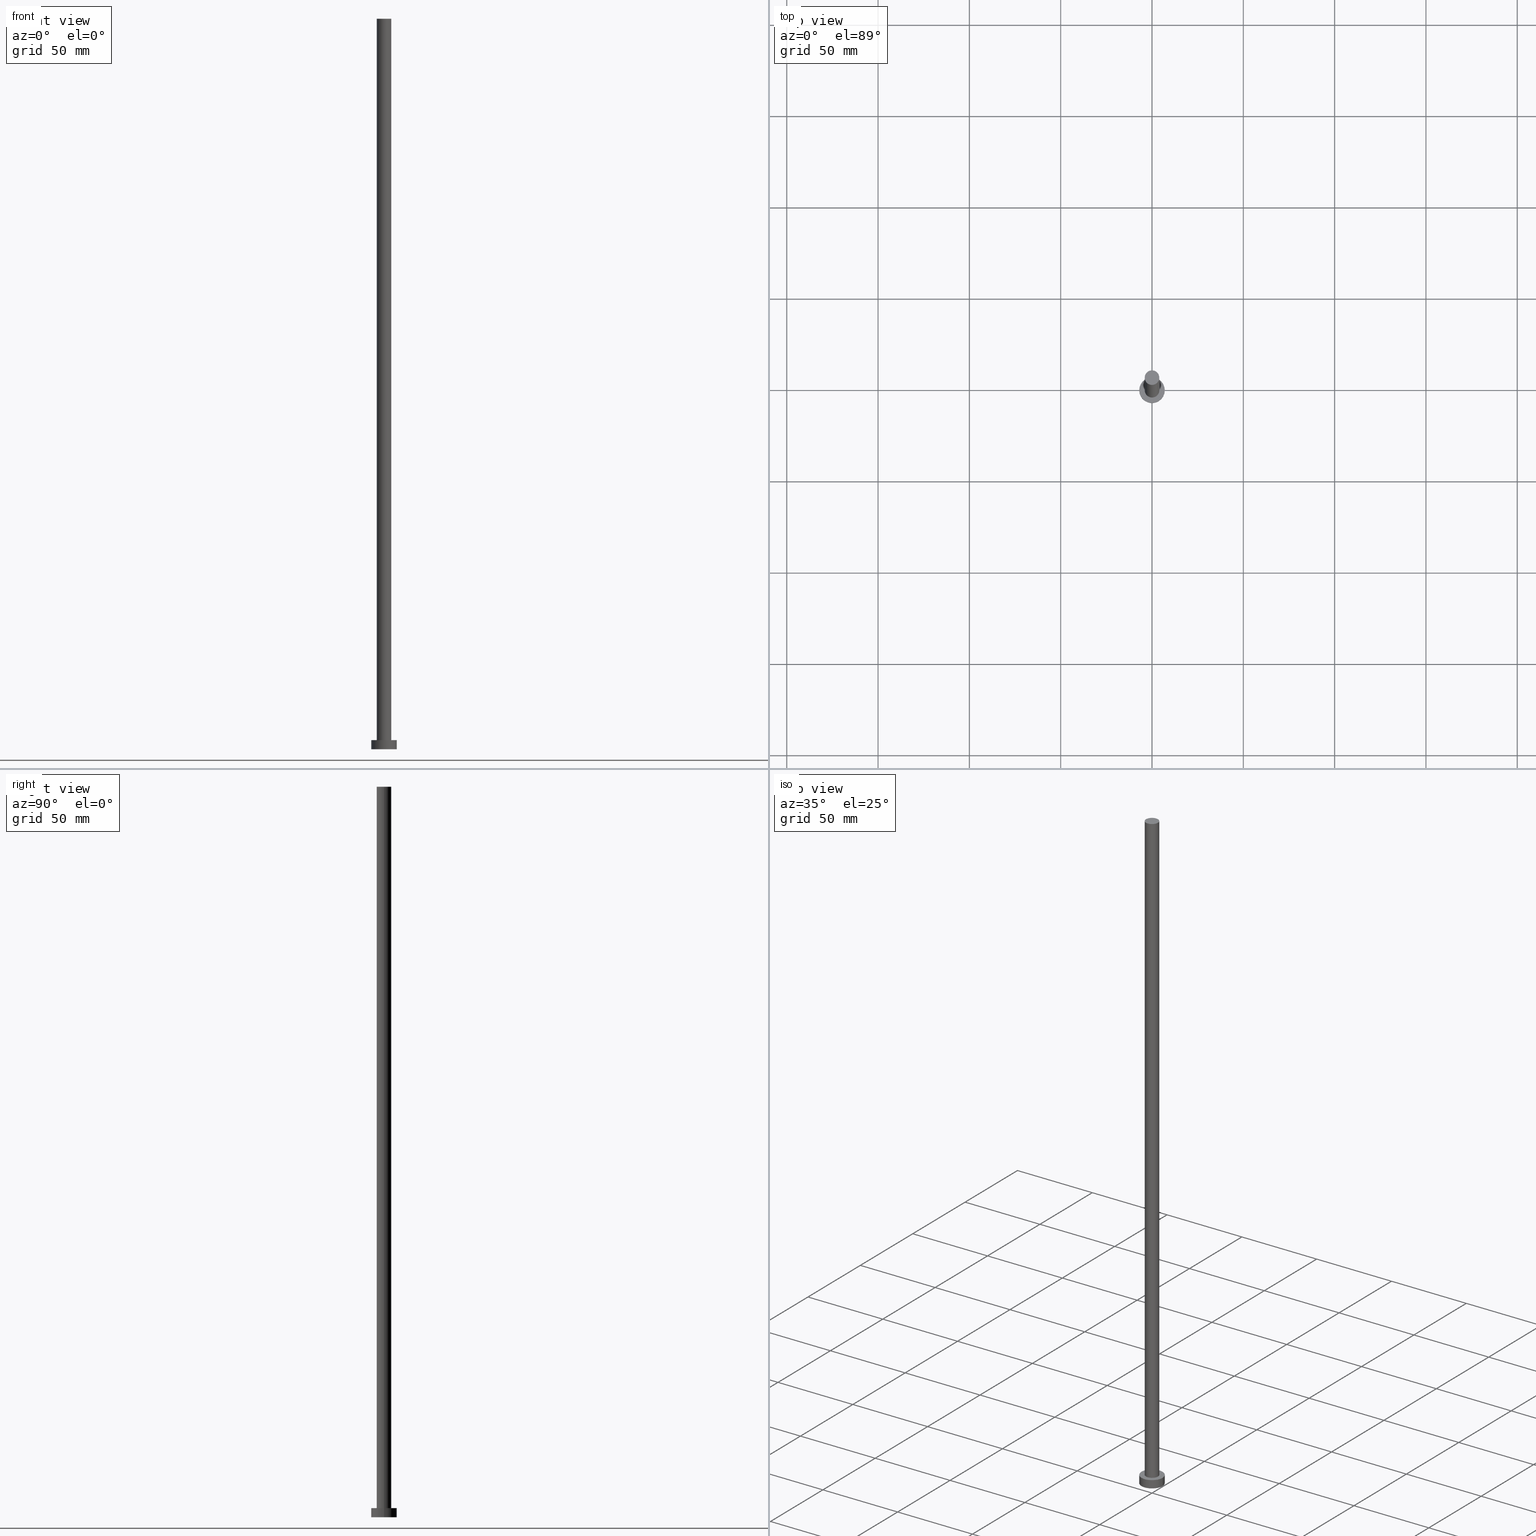
[diagram: canonical four-view strip — front | top / right | iso, engineering-drawing reading convention]
A machine part, canonical four-view strip (front | top / right | iso — engineering-drawing reading convention). The complete STEP part file that produces these views, byte-faithful:
ISO-10303-21;
HEADER;
FILE_DESCRIPTION (( 'STEP AP203' ),
    '1' );
FILE_NAME ('a5c2.STEP',
    '2023-02-12T11:48:18',
    ( '' ),
    ( '' ),
    'SwSTEP 2.0',
    'SolidWorks 2019',
    '' );
FILE_SCHEMA (( 'CONFIG_CONTROL_DESIGN' ));
ENDSEC;

DATA;
#1 = DATE_AND_TIME ( #137, #157 ) ;
#2 = PERSON_AND_ORGANIZATION_ROLE ( 'creator' ) ;
#3 = LOCAL_TIME ( 12, 48, 18.00000000000000000, #98 ) ;
#4 = APPROVAL ( #79, 'NEUR�EN�' ) ;
#5 = APPROVAL_ROLE ( '' ) ;
#6 = APPROVAL_STATUS ( 'not_yet_approved' ) ;
#7 = DIRECTION ( 'NONE',  ( 1.000000000000000000, 0.000000000000000000, 0.000000000000000000 ) ) ;
#8 = CARTESIAN_POINT ( 'NONE',  ( 0.000000000000000000, 0.000000000000000000, 5.000000000000000000 ) ) ;
#9 = FACE_OUTER_BOUND ( 'NONE', #121, .T. ) ;
#10 = ORIENTED_EDGE ( 'NONE', *, *, #178, .T. ) ;
#11 = CARTESIAN_POINT ( 'NONE',  ( 0.000000000000000000, 0.000000000000000000, 5.000000000000000000 ) ) ;
#12 = EDGE_CURVE ( 'NONE', #170, #108, #153, .T. ) ;
#13 = ORIENTED_EDGE ( 'NONE', *, *, #231, .T. ) ;
#14 = DIRECTION ( 'NONE',  ( -1.000000000000000000, 0.000000000000000000, 0.000000000000000000 ) ) ;
#15 = DIRECTION ( 'NONE',  ( -0.000000000000000000, -0.000000000000000000, -1.000000000000000000 ) ) ;
#16 = FACE_OUTER_BOUND ( 'NONE', #188, .T. ) ;
#17 = PRODUCT_DEFINITION_FORMATION_WITH_SPECIFIED_SOURCE ( 'LIBOVOLN�', '', #221, .NOT_KNOWN. ) ;
#18 = APPROVAL_ROLE ( '' ) ;
#19 = EDGE_CURVE ( 'NONE', #106, #105, #28, .T. ) ;
#20 = PERSON_AND_ORGANIZATION_ROLE ( 'design_supplier' ) ;
#21 = APPROVAL_PERSON_ORGANIZATION ( #198, #46, #5 ) ;
#22 = DATE_AND_TIME ( #218, #67 ) ;
#23 = CC_DESIGN_DATE_AND_TIME_ASSIGNMENT ( #1, #160, ( #219 ) ) ;
#24 = ORIENTED_EDGE ( 'NONE', *, *, #12, .F. ) ;
#25 = DIRECTION ( 'NONE',  ( 0.000000000000000000, 0.000000000000000000, 1.000000000000000000 ) ) ;
#26 = DIRECTION ( 'NONE',  ( -0.000000000000000000, -0.000000000000000000, -1.000000000000000000 ) ) ;
#27 = VERTEX_POINT ( 'NONE', #29 ) ;
#28 = CIRCLE ( 'NONE', #48, 7.000000000000000000 ) ;
#29 = CARTESIAN_POINT ( 'NONE',  ( 7.000000000000000000, 8.572527594031473190E-16, 0.000000000000000000 ) ) ;
#30 = VERTEX_POINT ( 'NONE', #204 ) ;
#31 = CARTESIAN_POINT ( 'NONE',  ( 4.000000000000000000, 4.898587196589411843E-16, 5.000000000000000000 ) ) ;
#32 = DIRECTION ( 'NONE',  ( -0.000000000000000000, -0.000000000000000000, -1.000000000000000000 ) ) ;
#33 = CIRCLE ( 'NONE', #76, 7.000000000000000000 ) ;
#34 = CARTESIAN_POINT ( 'NONE',  ( 0.000000000000000000, 0.000000000000000000, 0.000000000000000000 ) ) ;
#35 = CARTESIAN_POINT ( 'NONE',  ( 7.000000000000000000, 8.572527594031473190E-16, 5.000000000000000000 ) ) ;
#36 = LINE ( 'NONE', #173, #196 ) ;
#37 =( GEOMETRIC_REPRESENTATION_CONTEXT ( 3 ) GLOBAL_UNCERTAINTY_ASSIGNED_CONTEXT ( ( #241 ) ) GLOBAL_UNIT_ASSIGNED_CONTEXT ( ( #95, #156, #191 ) ) REPRESENTATION_CONTEXT ( 'NONE', 'WORKASPACE' ) );
#38 = ADVANCED_FACE ( 'NONE', ( #142 ), #146, .T. ) ;
#39 = SECURITY_CLASSIFICATION_LEVEL ( 'unclassified' ) ;
#40 = CALENDAR_DATE ( 2023, 12, 2 ) ;
#41 = ADVANCED_FACE ( 'NONE', ( #186, #9 ), #71, .T. ) ;
#42 = APPLICATION_PROTOCOL_DEFINITION ( 'international standard', 'config_control_design', 1994, #165 ) ;
#43 = ORIENTED_EDGE ( 'NONE', *, *, #207, .F. ) ;
#44 = LOCAL_TIME ( 12, 48, 18.00000000000000000, #159 ) ;
#45 = ORIENTED_EDGE ( 'NONE', *, *, #127, .F. ) ;
#46 = APPROVAL ( #97, 'NEUR�EN�' ) ;
#47 = CYLINDRICAL_SURFACE ( 'NONE', #101, 7.000000000000000000 ) ;
#48 = AXIS2_PLACEMENT_3D ( 'NONE', #11, #69, #122 ) ;
#49 = ORIENTED_EDGE ( 'NONE', *, *, #104, .T. ) ;
#50 = AXIS2_PLACEMENT_3D ( 'NONE', #149, #15, #14 ) ;
#51 = AXIS2_PLACEMENT_3D ( 'NONE', #54, #192, #130 ) ;
#52 = DIRECTION ( 'NONE',  ( -0.000000000000000000, -0.000000000000000000, -1.000000000000000000 ) ) ;
#53 = CARTESIAN_POINT ( 'NONE',  ( 0.000000000000000000, 0.000000000000000000, 5.000000000000000000 ) ) ;
#54 = CARTESIAN_POINT ( 'NONE',  ( 0.000000000000000000, 0.000000000000000000, 0.000000000000000000 ) ) ;
#55 = PRODUCT_RELATED_PRODUCT_CATEGORY ( 'detail', '', ( #221 ) ) ;
#56 = APPROVAL_PERSON_ORGANIZATION ( #96, #4, #18 ) ;
#57 = CARTESIAN_POINT ( 'NONE',  ( 4.000000000000000000, 4.898587196589411843E-16, 400.0000000000000000 ) ) ;
#58 = DIRECTION ( 'NONE',  ( 0.000000000000000000, 0.000000000000000000, 1.000000000000000000 ) ) ;
#59 = DIRECTION ( 'NONE',  ( 0.000000000000000000, 0.000000000000000000, 1.000000000000000000 ) ) ;
#60 = PERSON_AND_ORGANIZATION ( #172, #222 ) ;
#61 = APPLICATION_PROTOCOL_DEFINITION ( 'international standard', 'config_control_design', 1994, #179 ) ;
#62 = CC_DESIGN_PERSON_AND_ORGANIZATION_ASSIGNMENT ( #117, #138, ( #84 ) ) ;
#63 = COORDINATED_UNIVERSAL_TIME_OFFSET ( 1, 0, .AHEAD. ) ;
#64 = ADVANCED_FACE ( 'NONE', ( #68 ), #47, .T. ) ;
#65 = ORIENTED_EDGE ( 'NONE', *, *, #193, .F. ) ;
#66 = VERTEX_POINT ( 'NONE', #184 ) ;
#67 = LOCAL_TIME ( 12, 48, 18.00000000000000000, #63 ) ;
#68 = FACE_OUTER_BOUND ( 'NONE', #168, .T. ) ;
#69 = DIRECTION ( 'NONE',  ( 0.000000000000000000, 0.000000000000000000, 1.000000000000000000 ) ) ;
#70 = EDGE_CURVE ( 'NONE', #105, #106, #114, .T. ) ;
#71 = PLANE ( 'NONE',  #206 ) ;
#72 = LOCAL_TIME ( 12, 48, 18.00000000000000000, #119 ) ;
#73 = PLANE ( 'NONE',  #51 ) ;
#74 = LINE ( 'NONE', #91, #139 ) ;
#75 = CARTESIAN_POINT ( 'NONE',  ( 0.000000000000000000, 0.000000000000000000, 0.000000000000000000 ) ) ;
#76 = AXIS2_PLACEMENT_3D ( 'NONE', #75, #132, #253 ) ;
#77 = FACE_OUTER_BOUND ( 'NONE', #223, .T. ) ;
#78 = COORDINATED_UNIVERSAL_TIME_OFFSET ( 1, 0, .AHEAD. ) ;
#79 = APPROVAL_STATUS ( 'not_yet_approved' ) ;
#80 = PERSON_AND_ORGANIZATION ( #172, #222 ) ;
#81 = DESIGN_CONTEXT ( 'detailed design', #179, 'design' ) ;
#82 = ORIENTED_EDGE ( 'NONE', *, *, #12, .T. ) ;
#83 = ORIENTED_EDGE ( 'NONE', *, *, #70, .T. ) ;
#84 = SECURITY_CLASSIFICATION ( '', '', #39 ) ;
#85 = EDGE_LOOP ( 'NONE', ( #220, #43 ) ) ;
#86 = CARTESIAN_POINT ( 'NONE',  ( 0.000000000000000000, 0.000000000000000000, 400.0000000000000000 ) ) ;
#87 = LINE ( 'NONE', #35, #226 ) ;
#88 = ADVANCED_FACE ( 'NONE', ( #195 ), #150, .T. ) ;
#89 = LINE ( 'NONE', #57, #239 ) ;
#90 = ADVANCED_FACE ( 'NONE', ( #16 ), #251, .T. ) ;
#91 = CARTESIAN_POINT ( 'NONE',  ( -4.000000000000000000, 0.000000000000000000, 400.0000000000000000 ) ) ;
#92 = DIRECTION ( 'NONE',  ( -0.000000000000000000, -0.000000000000000000, -1.000000000000000000 ) ) ;
#93 = EDGE_CURVE ( 'NONE', #66, #170, #89, .T. ) ;
#94 = AXIS2_PLACEMENT_3D ( 'NONE', #8, #25, #7 ) ;
#95 =( LENGTH_UNIT ( ) NAMED_UNIT ( * ) SI_UNIT ( .MILLI., .METRE. ) );
#96 = PERSON_AND_ORGANIZATION ( #172, #222 ) ;
#97 = APPROVAL_STATUS ( 'not_yet_approved' ) ;
#98 = COORDINATED_UNIVERSAL_TIME_OFFSET ( 1, 0, .AHEAD. ) ;
#99 = DIRECTION ( 'NONE',  ( 1.000000000000000000, 0.000000000000000000, 0.000000000000000000 ) ) ;
#100 = APPROVAL_DATE_TIME ( #22, #237 ) ;
#101 = AXIS2_PLACEMENT_3D ( 'NONE', #227, #52, #202 ) ;
#102 = EDGE_LOOP ( 'NONE', ( #209, #107, #225, #144 ) ) ;
#103 = ORIENTED_EDGE ( 'NONE', *, *, #104, .F. ) ;
#104 = EDGE_CURVE ( 'NONE', #106, #208, #36, .T. ) ;
#105 = VERTEX_POINT ( 'NONE', #129 ) ;
#106 = VERTEX_POINT ( 'NONE', #109 ) ;
#107 = ORIENTED_EDGE ( 'NONE', *, *, #178, .F. ) ;
#108 = VERTEX_POINT ( 'NONE', #212 ) ;
#109 = CARTESIAN_POINT ( 'NONE',  ( -7.000000000000000000, 0.000000000000000000, 5.000000000000000000 ) ) ;
#110 = CC_DESIGN_DATE_AND_TIME_ASSIGNMENT ( #200, #182, ( #84 ) ) ;
#111 = DIRECTION ( 'NONE',  ( 1.000000000000000000, 0.000000000000000000, 0.000000000000000000 ) ) ;
#112 = EDGE_CURVE ( 'NONE', #105, #27, #87, .T. ) ;
#113 = CARTESIAN_POINT ( 'NONE',  ( 0.000000000000000000, 0.000000000000000000, 400.0000000000000000 ) ) ;
#114 = CIRCLE ( 'NONE', #94, 7.000000000000000000 ) ;
#115 = AXIS2_PLACEMENT_3D ( 'NONE', #177, #175, #111 ) ;
#116 = PERSON_AND_ORGANIZATION ( #172, #222 ) ;
#117 = PERSON_AND_ORGANIZATION ( #172, #222 ) ;
#118 = CARTESIAN_POINT ( 'NONE',  ( 0.000000000000000000, 0.000000000000000000, 0.000000000000000000 ) ) ;
#119 = COORDINATED_UNIVERSAL_TIME_OFFSET ( 1, 0, .AHEAD. ) ;
#120 = ADVANCED_BREP_SHAPE_REPRESENTATION ( 'a5c2', ( #243, #240 ), #37 ) ;
#121 = EDGE_LOOP ( 'NONE', ( #205, #83 ) ) ;
#122 = DIRECTION ( 'NONE',  ( 1.000000000000000000, 0.000000000000000000, 0.000000000000000000 ) ) ;
#123 = DIRECTION ( 'NONE',  ( 0.000000000000000000, 0.000000000000000000, 1.000000000000000000 ) ) ;
#124 = CLOSED_SHELL ( 'NONE', ( #88, #64, #90, #41, #136, #38, #249 ) ) ;
#125 = CARTESIAN_POINT ( 'NONE',  ( 0.000000000000000000, 0.000000000000000000, 5.000000000000000000 ) ) ;
#126 = CC_DESIGN_APPROVAL ( #4, ( #17 ) ) ;
#127 = EDGE_CURVE ( 'NONE', #30, #108, #74, .T. ) ;
#128 = DIRECTION ( 'NONE',  ( -0.000000000000000000, -0.000000000000000000, -1.000000000000000000 ) ) ;
#129 = CARTESIAN_POINT ( 'NONE',  ( 7.000000000000000000, 8.572527594031473190E-16, 5.000000000000000000 ) ) ;
#130 = DIRECTION ( 'NONE',  ( 1.000000000000000000, 0.000000000000000000, -0.000000000000000000 ) ) ;
#131 = AXIS2_PLACEMENT_3D ( 'NONE', #34, #58, #228 ) ;
#132 = DIRECTION ( 'NONE',  ( 0.000000000000000000, 0.000000000000000000, 1.000000000000000000 ) ) ;
#133 = CARTESIAN_POINT ( 'NONE',  ( 0.000000000000000000, 0.000000000000000000, 400.0000000000000000 ) ) ;
#134 = PERSON_AND_ORGANIZATION ( #172, #222 ) ;
#135 = PERSON_AND_ORGANIZATION_ROLE ( 'creator' ) ;
#136 = ADVANCED_FACE ( 'NONE', ( #229 ), #73, .F. ) ;
#137 = CALENDAR_DATE ( 2023, 12, 2 ) ;
#138 = PERSON_AND_ORGANIZATION_ROLE ( 'classification_officer' ) ;
#139 = VECTOR ( 'NONE', #92, 1000.000000000000000 ) ;
#140 = AXIS2_PLACEMENT_3D ( 'NONE', #125, #123, #247 ) ;
#141 = MECHANICAL_CONTEXT ( 'NONE', #165, 'mechanical' ) ;
#142 = FACE_OUTER_BOUND ( 'NONE', #102, .T. ) ;
#143 = CIRCLE ( 'NONE', #131, 7.000000000000000000 ) ;
#144 = ORIENTED_EDGE ( 'NONE', *, *, #193, .T. ) ;
#145 = ORIENTED_EDGE ( 'NONE', *, *, #112, .F. ) ;
#146 = CYLINDRICAL_SURFACE ( 'NONE', #176, 4.000000000000000000 ) ;
#147 = CARTESIAN_POINT ( 'NONE',  ( 0.000000000000000000, 0.000000000000000000, 5.000000000000000000 ) ) ;
#148 = AXIS2_PLACEMENT_3D ( 'NONE', #53, #255, #194 ) ;
#149 = CARTESIAN_POINT ( 'NONE',  ( 0.000000000000000000, 0.000000000000000000, 5.000000000000000000 ) ) ;
#150 = CYLINDRICAL_SURFACE ( 'NONE', #162, 4.000000000000000000 ) ;
#151 = EDGE_CURVE ( 'NONE', #208, #27, #143, .T. ) ;
#152 = CARTESIAN_POINT ( 'NONE',  ( -7.000000000000000000, 0.000000000000000000, 0.000000000000000000 ) ) ;
#153 = CIRCLE ( 'NONE', #140, 4.000000000000000000 ) ;
#154 = ORIENTED_EDGE ( 'NONE', *, *, #207, .T. ) ;
#155 = DIRECTION ( 'NONE',  ( 0.000000000000000000, 0.000000000000000000, 1.000000000000000000 ) ) ;
#156 =( NAMED_UNIT ( * ) PLANE_ANGLE_UNIT ( ) SI_UNIT ( $, .RADIAN. ) );
#157 = LOCAL_TIME ( 12, 48, 18.00000000000000000, #78 ) ;
#158 = CIRCLE ( 'NONE', #148, 4.000000000000000000 ) ;
#159 = COORDINATED_UNIVERSAL_TIME_OFFSET ( 1, 0, .AHEAD. ) ;
#160 = DATE_TIME_ROLE ( 'creation_date' ) ;
#161 = CC_DESIGN_PERSON_AND_ORGANIZATION_ASSIGNMENT ( #116, #236, ( #221 ) ) ;
#162 = AXIS2_PLACEMENT_3D ( 'NONE', #233, #174, #210 ) ;
#163 = CC_DESIGN_APPROVAL ( #237, ( #84 ) ) ;
#164 = APPROVAL_ROLE ( '' ) ;
#165 = APPLICATION_CONTEXT ( 'configuration controlled 3d designs of mechanical parts and assemblies' ) ;
#166 = ORIENTED_EDGE ( 'NONE', *, *, #151, .T. ) ;
#167 = DIRECTION ( 'NONE',  ( 1.000000000000000000, 0.000000000000000000, -0.000000000000000000 ) ) ;
#168 = EDGE_LOOP ( 'NONE', ( #203, #189, #154, #103 ) ) ;
#169 = ORIENTED_EDGE ( 'NONE', *, *, #231, .F. ) ;
#170 = VERTEX_POINT ( 'NONE', #31 ) ;
#171 = CC_DESIGN_PERSON_AND_ORGANIZATION_ASSIGNMENT ( #134, #2, ( #219 ) ) ;
#172 = PERSON ( 'NEUR�EN�', 'NEUR�EN�', 'NEUR�EN�', ('NEUR�EN�'), ('NEUR�EN�'), ('NEUR�EN�') ) ;
#173 = CARTESIAN_POINT ( 'NONE',  ( -7.000000000000000000, 0.000000000000000000, 5.000000000000000000 ) ) ;
#174 = DIRECTION ( 'NONE',  ( -0.000000000000000000, -0.000000000000000000, -1.000000000000000000 ) ) ;
#175 = DIRECTION ( 'NONE',  ( 0.000000000000000000, 0.000000000000000000, 1.000000000000000000 ) ) ;
#176 = AXIS2_PLACEMENT_3D ( 'NONE', #86, #26, #248 ) ;
#177 = CARTESIAN_POINT ( 'NONE',  ( 0.000000000000000000, 0.000000000000000000, 400.0000000000000000 ) ) ;
#178 = EDGE_CURVE ( 'NONE', #30, #66, #245, .T. ) ;
#179 = APPLICATION_CONTEXT ( 'configuration controlled 3d designs of mechanical parts and assemblies' ) ;
#180 = CALENDAR_DATE ( 2023, 12, 2 ) ;
#181 = APPROVAL_DATE_TIME ( #199, #46 ) ;
#182 = DATE_TIME_ROLE ( 'classification_date' ) ;
#183 = SHAPE_DEFINITION_REPRESENTATION ( #185, #120 ) ;
#184 = CARTESIAN_POINT ( 'NONE',  ( 4.000000000000000000, 4.898587196589411843E-16, 400.0000000000000000 ) ) ;
#185 = PRODUCT_DEFINITION_SHAPE ( 'NONE', 'NONE',  #219 ) ;
#186 = FACE_BOUND ( 'NONE', #242, .T. ) ;
#187 = APPROVAL_PERSON_ORGANIZATION ( #238, #237, #164 ) ;
#188 = EDGE_LOOP ( 'NONE', ( #145, #224, #49, #166 ) ) ;
#189 = ORIENTED_EDGE ( 'NONE', *, *, #112, .T. ) ;
#190 = ORIENTED_EDGE ( 'NONE', *, *, #93, .T. ) ;
#191 =( NAMED_UNIT ( * ) SI_UNIT ( $, .STERADIAN. ) SOLID_ANGLE_UNIT ( ) );
#192 = DIRECTION ( 'NONE',  ( 0.000000000000000000, 0.000000000000000000, 1.000000000000000000 ) ) ;
#193 = EDGE_CURVE ( 'NONE', #108, #170, #158, .T. ) ;
#194 = DIRECTION ( 'NONE',  ( 1.000000000000000000, 0.000000000000000000, 0.000000000000000000 ) ) ;
#195 = FACE_OUTER_BOUND ( 'NONE', #244, .T. ) ;
#196 = VECTOR ( 'NONE', #128, 1000.000000000000000 ) ;
#197 = CC_DESIGN_APPROVAL ( #46, ( #219 ) ) ;
#198 = PERSON_AND_ORGANIZATION ( #172, #222 ) ;
#199 = DATE_AND_TIME ( #180, #72 ) ;
#200 = DATE_AND_TIME ( #217, #3 ) ;
#201 = DATE_AND_TIME ( #40, #44 ) ;
#202 = DIRECTION ( 'NONE',  ( -1.000000000000000000, 0.000000000000000000, 0.000000000000000000 ) ) ;
#203 = ORIENTED_EDGE ( 'NONE', *, *, #70, .F. ) ;
#204 = CARTESIAN_POINT ( 'NONE',  ( -4.000000000000000000, 0.000000000000000000, 400.0000000000000000 ) ) ;
#205 = ORIENTED_EDGE ( 'NONE', *, *, #19, .T. ) ;
#206 = AXIS2_PLACEMENT_3D ( 'NONE', #147, #246, #167 ) ;
#207 = EDGE_CURVE ( 'NONE', #27, #208, #33, .T. ) ;
#208 = VERTEX_POINT ( 'NONE', #152 ) ;
#209 = ORIENTED_EDGE ( 'NONE', *, *, #93, .F. ) ;
#210 = DIRECTION ( 'NONE',  ( -1.000000000000000000, 0.000000000000000000, 0.000000000000000000 ) ) ;
#211 = AXIS2_PLACEMENT_3D ( 'NONE', #113, #155, #215 ) ;
#212 = CARTESIAN_POINT ( 'NONE',  ( -4.000000000000000000, 0.000000000000000000, 5.000000000000000000 ) ) ;
#213 = CC_DESIGN_PERSON_AND_ORGANIZATION_ASSIGNMENT ( #60, #135, ( #17 ) ) ;
#214 = DIRECTION ( 'NONE',  ( 1.000000000000000000, 0.000000000000000000, 0.000000000000000000 ) ) ;
#215 = DIRECTION ( 'NONE',  ( 1.000000000000000000, 0.000000000000000000, -0.000000000000000000 ) ) ;
#216 = CC_DESIGN_PERSON_AND_ORGANIZATION_ASSIGNMENT ( #80, #20, ( #17 ) ) ;
#217 = CALENDAR_DATE ( 2023, 12, 2 ) ;
#218 = CALENDAR_DATE ( 2023, 12, 2 ) ;
#219 = PRODUCT_DEFINITION ( 'NEZN�M�', '', #17, #81 ) ;
#220 = ORIENTED_EDGE ( 'NONE', *, *, #151, .F. ) ;
#221 = PRODUCT ( 'a5c2', 'a5c2', '', ( #141 ) ) ;
#222 = ORGANIZATION ( 'NEUR�EN�', 'NEUR�EN�', '' ) ;
#223 = EDGE_LOOP ( 'NONE', ( #10, #13 ) ) ;
#224 = ORIENTED_EDGE ( 'NONE', *, *, #19, .F. ) ;
#225 = ORIENTED_EDGE ( 'NONE', *, *, #127, .T. ) ;
#226 = VECTOR ( 'NONE', #252, 1000.000000000000000 ) ;
#227 = CARTESIAN_POINT ( 'NONE',  ( 0.000000000000000000, 0.000000000000000000, 5.000000000000000000 ) ) ;
#228 = DIRECTION ( 'NONE',  ( 1.000000000000000000, 0.000000000000000000, 0.000000000000000000 ) ) ;
#229 = FACE_OUTER_BOUND ( 'NONE', #85, .T. ) ;
#230 = DIRECTION ( 'NONE',  ( 0.000000000000000000, 0.000000000000000000, 1.000000000000000000 ) ) ;
#231 = EDGE_CURVE ( 'NONE', #66, #30, #250, .T. ) ;
#232 = PLANE ( 'NONE',  #211 ) ;
#233 = CARTESIAN_POINT ( 'NONE',  ( 0.000000000000000000, 0.000000000000000000, 400.0000000000000000 ) ) ;
#234 = CC_DESIGN_SECURITY_CLASSIFICATION ( #84, ( #17 ) ) ;
#235 = APPROVAL_DATE_TIME ( #201, #4 ) ;
#236 = PERSON_AND_ORGANIZATION_ROLE ( 'design_owner' ) ;
#237 = APPROVAL ( #6, 'NEUR�EN�' ) ;
#238 = PERSON_AND_ORGANIZATION ( #172, #222 ) ;
#239 = VECTOR ( 'NONE', #32, 1000.000000000000000 ) ;
#240 = AXIS2_PLACEMENT_3D ( 'NONE', #118, #59, #99 ) ;
#241 = UNCERTAINTY_MEASURE_WITH_UNIT (LENGTH_MEASURE( 1.000000000000000082E-05 ), #95, 'distance_accuracy_value', 'NONE');
#242 = EDGE_LOOP ( 'NONE', ( #65, #24 ) ) ;
#243 = MANIFOLD_SOLID_BREP ( 'P�idat vysunut�m3', #124 ) ;
#244 = EDGE_LOOP ( 'NONE', ( #169, #190, #82, #45 ) ) ;
#245 = CIRCLE ( 'NONE', #115, 4.000000000000000000 ) ;
#246 = DIRECTION ( 'NONE',  ( 0.000000000000000000, 0.000000000000000000, 1.000000000000000000 ) ) ;
#247 = DIRECTION ( 'NONE',  ( 1.000000000000000000, 0.000000000000000000, 0.000000000000000000 ) ) ;
#248 = DIRECTION ( 'NONE',  ( -1.000000000000000000, 0.000000000000000000, 0.000000000000000000 ) ) ;
#249 = ADVANCED_FACE ( 'NONE', ( #77 ), #232, .T. ) ;
#250 = CIRCLE ( 'NONE', #254, 4.000000000000000000 ) ;
#251 = CYLINDRICAL_SURFACE ( 'NONE', #50, 7.000000000000000000 ) ;
#252 = DIRECTION ( 'NONE',  ( -0.000000000000000000, -0.000000000000000000, -1.000000000000000000 ) ) ;
#253 = DIRECTION ( 'NONE',  ( 1.000000000000000000, 0.000000000000000000, 0.000000000000000000 ) ) ;
#254 = AXIS2_PLACEMENT_3D ( 'NONE', #133, #230, #214 ) ;
#255 = DIRECTION ( 'NONE',  ( 0.000000000000000000, 0.000000000000000000, 1.000000000000000000 ) ) ;
ENDSEC;
END-ISO-10303-21;
